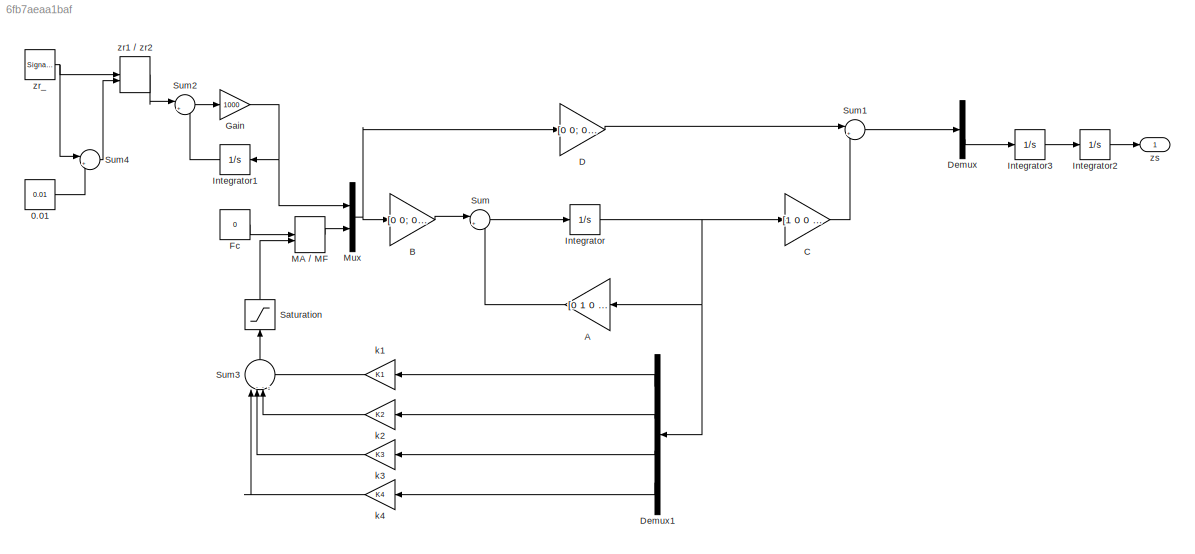
MODEL slx_6fb7aeaa1baf
KIND model
CONFIG AbsTol = auto
CONFIG FixedStep = auto
CONFIG MaxStep = auto
CONFIG MinStep = auto
CONFIG RelTol = 1e-3
CONFIG SampleTimeConstraint = Unconstrained
CONFIG Solver = ode23t
CONFIG SolverMode = Auto
CONFIG SolverName = ode23t
CONFIG StartTime = 0.0
CONFIG StopTime = 10.0
BLOCK [Constant] 0.01
  Value = 0.01
BLOCK [Gain] A
  Gain = [0 1 0 -1; -Ks(ks)/Ms -Bs(bs)/Ms 0 Bs(bs)/Ms; 0 0 0 1; Ks(ks)/Mus Bs(bs)/Mus -Kus(kus)/Mus -(Bs(bs)+Bus(bus))/Mus]
  Multiplication = Matrix(K*u)
  OutDataTypeStr = Inherit: Inherit via internal rule
  ParamDataTypeStr = Inherit: Inherit via internal rule
  SaturateOnIntegerOverflow = off
BLOCK [Gain] B
  Gain = [0 0; 0 1/Ms; -1 0; Bus(bus)/Mus -1/Mus]
  Multiplication = Matrix(K*u)
  OutDataTypeStr = Inherit: Inherit via internal rule
  ParamDataTypeStr = Inherit: Inherit via internal rule
  SaturateOnIntegerOverflow = off
BLOCK [Gain] C
  Gain = [1 0 0 0; -Ks(ks)/Ms -Bs(bs)/Ms 0 Bs(bs)/Ms]
  Multiplication = Matrix(K*u)
  OutDataTypeStr = Inherit: Inherit via internal rule
  ParamDataTypeStr = Inherit: Inherit via internal rule
  SaturateOnIntegerOverflow = off
BLOCK [Gain] D
  Gain = [0 0; 0 1/Ms]
  Multiplication = Matrix(K*u)
  OutDataTypeStr = Inherit: Inherit via internal rule
  ParamDataTypeStr = Inherit: Inherit via internal rule
  SaturateOnIntegerOverflow = off
BLOCK [Demux] Demux
  DisplayOption = bar
  Outputs = 2
  Ports = [1, 2]
BLOCK [Demux] Demux1
  DisplayOption = bar
  Ports = [1, 4]
BLOCK [Constant] Fc
  Value = 0
BLOCK [Gain] Gain
  Gain = 1000
  OutDataTypeStr = Inherit: Inherit via internal rule
  ParamDataTypeStr = Inherit: Inherit via internal rule
  SaturateOnIntegerOverflow = off
BLOCK [Integrator] Integrator
  Ports = [1, 1]
BLOCK [Integrator] Integrator1
  Ports = [1, 1]
BLOCK [Integrator] Integrator2
  Ports = [1, 1]
BLOCK [Integrator] Integrator3
  Ports = [1, 1]
BLOCK [ManualSwitch] MA // MF
  CurrentSetting = 0
BLOCK [Mux] Mux
  DisplayOption = bar
  Inputs = 2
  Ports = [2, 1]
BLOCK [Saturate] Saturation
  InputPortMap = u0
  LowerLimit = -30
  Ports = [1, 1]
  UpperLimit = 30
BLOCK [Sum] Sum
  IconShape = round
  InputSameDT = off
  Inputs = |++
  OutDataTypeStr = Inherit: Inherit via internal rule
  Ports = [2, 1]
  SaturateOnIntegerOverflow = off
BLOCK [Sum] Sum1
  IconShape = round
  InputSameDT = off
  Inputs = |++
  OutDataTypeStr = Inherit: Inherit via internal rule
  Ports = [2, 1]
  SaturateOnIntegerOverflow = off
BLOCK [Sum] Sum2
  IconShape = round
  InputSameDT = off
  Inputs = |+-
  OutDataTypeStr = Inherit: Inherit via internal rule
  Ports = [2, 1]
  SaturateOnIntegerOverflow = off
BLOCK [Sum] Sum3
  IconShape = round
  InputSameDT = off
  Inputs = |----
  OutDataTypeStr = Inherit: Inherit via internal rule
  Ports = [4, 1]
  SaturateOnIntegerOverflow = off
BLOCK [Sum] Sum4
  IconShape = round
  InputSameDT = off
  Inputs = |++
  OutDataTypeStr = Inherit: Inherit via internal rule
  Ports = [2, 1]
  SaturateOnIntegerOverflow = off
BLOCK [Gain] k1
  Gain = K1
  OutDataTypeStr = Inherit: Inherit via internal rule
  ParamDataTypeStr = Inherit: Inherit via internal rule
  SaturateOnIntegerOverflow = off
BLOCK [Gain] k2
  Gain = K2
  OutDataTypeStr = Inherit: Inherit via internal rule
  ParamDataTypeStr = Inherit: Inherit via internal rule
  SaturateOnIntegerOverflow = off
BLOCK [Gain] k3
  Gain = K3
  OutDataTypeStr = Inherit: Inherit via internal rule
  ParamDataTypeStr = Inherit: Inherit via internal rule
  SaturateOnIntegerOverflow = off
BLOCK [Gain] k4
  Gain = K4
  OutDataTypeStr = Inherit: Inherit via internal rule
  ParamDataTypeStr = Inherit: Inherit via internal rule
  SaturateOnIntegerOverflow = off
BLOCK [ManualSwitch] zr1 // zr2
  CurrentSetting = 0
BLOCK [SignalGenerator] zr_
  Amplitude = -0.01
  Frequency = 0.3
  Ports = [0, 1]
  WaveForm = square
BLOCK [Outport] zs
  IconDisplay = Port number
LINE 0.01:1 -> Sum4:2
LINE A:1 -> Sum:2
LINE B:1 -> Sum:1
LINE C:1 -> Sum1:2
LINE D:1 -> Sum1:1
LINE Demux1:1 -> k1:1
LINE Demux1:2 -> k2:1
LINE Demux1:3 -> k3:1
LINE Demux1:4 -> k4:1
LINE Demux:2 -> Integrator3:1
LINE Fc:1 -> MA // MF:1
NET Gain:1 -> Integrator1:1, Mux:1
LINE Integrator1:1 -> Sum2:2
LINE Integrator2:1 -> zs:1
LINE Integrator3:1 -> Integrator2:1
NET Integrator:1 -> A:1, C:1, Demux1:1
LINE MA // MF:1 -> Mux:2
NET Mux:1 -> B:1, D:1
LINE Saturation:1 -> MA // MF:2
LINE Sum1:1 -> Demux:1
LINE Sum2:1 -> Gain:1
LINE Sum3:1 -> Saturation:1
LINE Sum4:1 -> zr1 // zr2:2
LINE Sum:1 -> Integrator:1
LINE k1:1 -> Sum3:4
LINE k2:1 -> Sum3:3
LINE k3:1 -> Sum3:2
LINE k4:1 -> Sum3:1
LINE zr1 // zr2:1 -> Sum2:1
NET zr_:1 -> Sum4:1, zr1 // zr2:1
note: NET lines group one-source signal fan-out (src -> all destinations, sorted); 1:1 wires keep LINE
